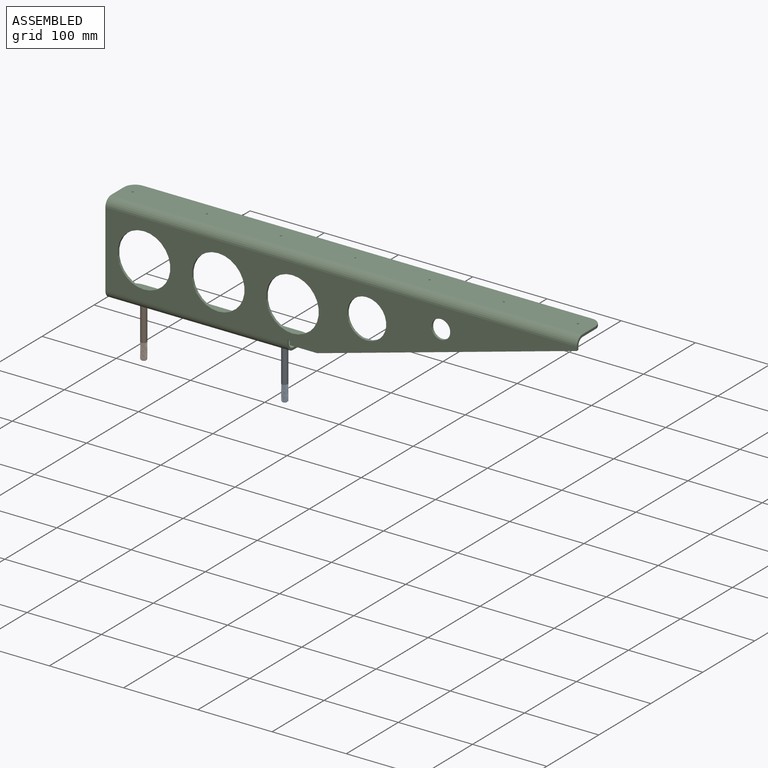
[diagram: assembled view]
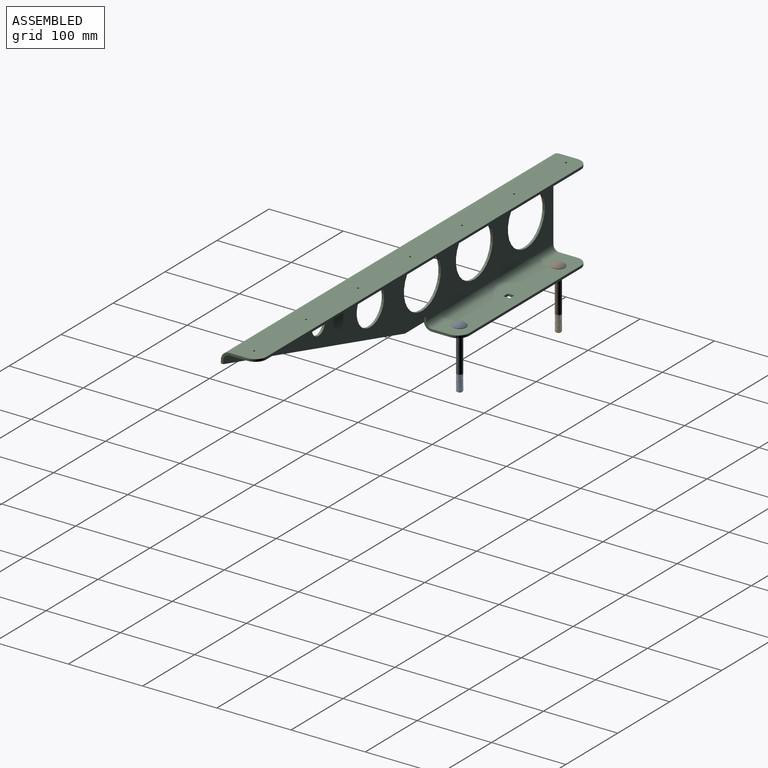
[diagram: assembled view, second angle]
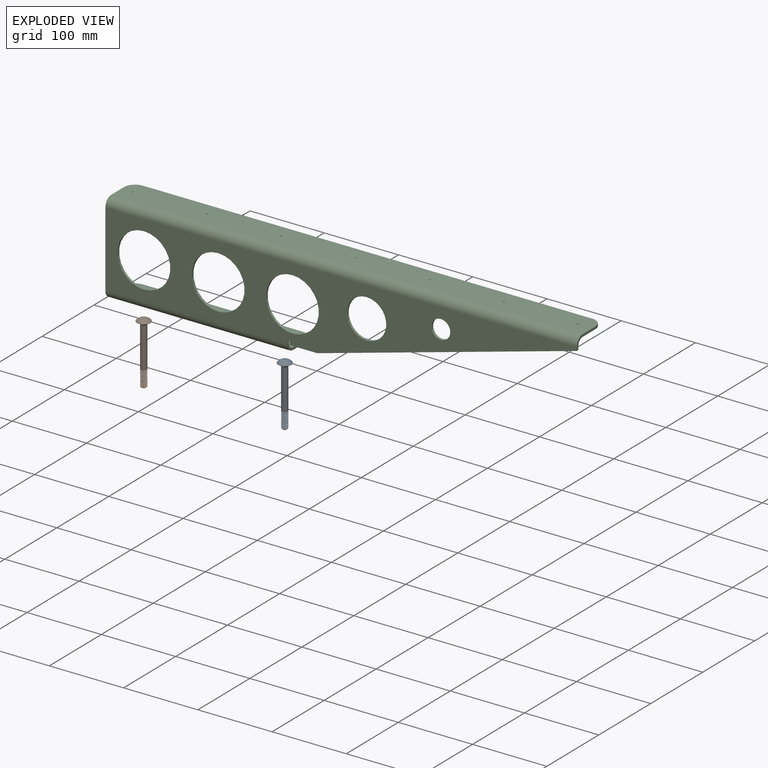
[diagram: exploded view]
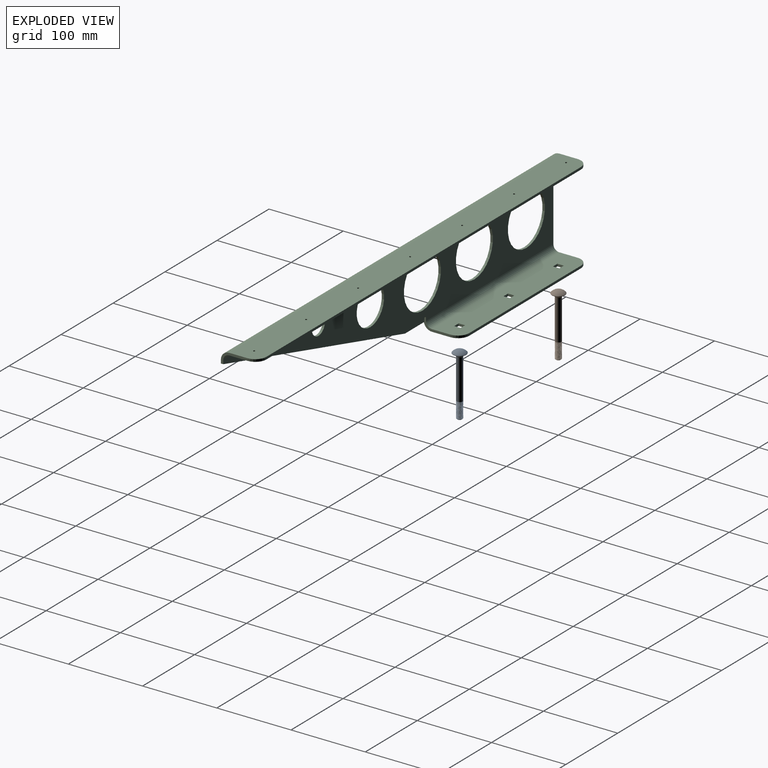
[diagram: exploded view, second angle]
ASSEMBLY  parts=3 mates=2
PART A: 37 faces, bbox 20.6x86.4x20.6 mm
  f0: cone r=4.3mm half-angle=45deg, axis (0,-1,0), area 8.6mm2, adj f3,f29,f30
  f1: cone r=4.3mm half-angle=45deg, axis (0,-1,0), area 8.6mm2, adj f3,f30,f31
  f2: cone r=4.3mm half-angle=45deg, axis (0,-1,0), area 8.6mm2, adj f3,f31,f32
  f3: torus R=5.03mm, axis (0,-1,0), area 20.9mm2, adj f0,f1,f2,f4,f11,f29,f30,f31
  f4: cone r=4.3mm half-angle=45deg, axis (0,-1,0), area 8.6mm2, adj f3,f29,f32
  f5: plane 6.13x6.13mm, normal (0,1,0), area 29.5mm2, adj f6
  f6: cone r=3.06mm half-angle=45deg, axis (0,-1,0), area 11.8mm2, adj f5,f7,f9,f10
  f7: cone r=3.06mm half-angle=45deg, axis (0,-1,0), area 3.8mm2, adj f6,f8,f10,f28
  f8: bspline ~22.55x9.24mm, area 373.6mm2, adj f7,f9,f11,f12,f13,f14,f15,f16
  f9: cylinder r=3.15mm len=21.91mm, axis (0,-1,0), area 87.6mm2, adj f6,f8,f10,f36
  f10: bspline ~22.97x9.24mm, area 373.7mm2, adj f6,f7,f9,f11,f12,f13,f14,f15
  f11: cylinder r=4mm len=55.33mm, axis (0,1,0), area 1367mm2, adj f3,f8,f10,f27,f36
  f12: cylinder r=4mm len=8mm, axis (0,1,0), area 3.9mm2, adj f8,f10,f13,f28
  f13: cylinder r=4mm len=8mm, axis (0,1,0), area 3.9mm2, adj f8,f10,f12,f14
  f14: cylinder r=4mm len=8mm, axis (0,1,0), area 3.9mm2, adj f8,f10,f13,f15
  f15: cylinder r=4mm len=8mm, axis (0,1,0), area 3.9mm2, adj f8,f10,f14,f16
  f16: cylinder r=4mm len=8mm, axis (0,1,0), area 3.9mm2, adj f8,f10,f15,f17
  f17: cylinder r=4mm len=8mm, axis (0,1,0), area 3.9mm2, adj f8,f10,f16,f18
  f18: cylinder r=4mm len=8mm, axis (0,1,0), area 3.9mm2, adj f8,f10,f17,f19
  f19: cylinder r=4mm len=8mm, axis (0,1,0), area 3.9mm2, adj f8,f10,f18,f20
  f20: cylinder r=4mm len=8mm, axis (0,1,0), area 3.9mm2, adj f8,f10,f19,f21
  f21: cylinder r=4mm len=8mm, axis (0,1,0), area 3.9mm2, adj f8,f10,f20,f22
  f22: cylinder r=4mm len=8mm, axis (0,1,0), area 3.9mm2, adj f8,f10,f21,f23
  f23: cylinder r=4mm len=8mm, axis (0,1,0), area 3.9mm2, adj f8,f10,f22,f24
  f24: cylinder r=4mm len=8mm, axis (0,1,0), area 3.9mm2, adj f8,f10,f23,f25
  f25: cylinder r=4mm len=8mm, axis (0,1,0), area 3.9mm2, adj f8,f10,f24,f26
  f26: cylinder r=4mm len=8mm, axis (0,1,0), area 3.9mm2, adj f8,f10,f25,f27
  f27: cylinder r=4mm len=8mm, axis (0,1,0), area 3.9mm2, adj f8,f10,f11,f26
  f28: cylinder r=4mm len=2.85mm, axis (0,1,0), area 0.2mm2, adj f7,f10,f12
  f29: plane 9.7x4.13mm, normal (1,0,0), area 20.4mm2, adj f0,f3,f4,f30,f32,f35
  f30: plane 9.7x4.13mm, normal (0,0,-1), area 20.4mm2, adj f0,f1,f3,f29,f31,f35
  f31: plane 9.7x4.13mm, normal (-1,0,0), area 20.4mm2, adj f1,f2,f3,f30,f32,f35
  f32: plane 9.7x4.13mm, normal (0,0,1), area 20.4mm2, adj f2,f3,f4,f29,f31,f35
  f33: sphere r=11.85mm, area 298mm2, adj f34
  f34: torus R=8.52mm, axis (0,1,0), area 61.4mm2, adj f33,f35
  f35: plane 17.04x17.04mm, normal (0,1,0), area 154.4mm2, adj f29,f30,f31,f32,f34
  f36: plane 8.5x8.45mm, normal (0,1,0), area 9.8mm2, adj f8,f9,f10,f11
PART B: same geometry as A
PART C: 55 faces, bbox 635x50.8x123.4 mm
  f0: plane 24.69x3.18mm, normal (-1,0,0), area 78.4mm2, adj f15,f16,f18,f52
  f1: plane 215x3.18mm, normal (0,1,0), area 682.6mm2, adj f15,f16,f17,f18
  f2: plane 8.58x3.18mm, normal (0,-1,0), area 27.2mm2, adj f3,f13,f15,f16
  f3: plane 8.58x3.18mm, normal (1,0,0), area 27.2mm2, adj f2,f4,f15,f16
  f4: plane 8.58x3.18mm, normal (0,1,0), area 27.2mm2, adj f3,f13,f15,f16
  f5: plane 8.58x3.18mm, normal (-1,0,0), area 27.2mm2, adj f6,f12,f15,f16
  f6: plane 8.58x3.18mm, normal (0,-1,0), area 27.2mm2, adj f5,f7,f15,f16
  f7: plane 8.58x3.18mm, normal (1,0,0), area 27.2mm2, adj f6,f12,f15,f16
  f8: plane 8.58x3.18mm, normal (-1,0,0), area 27.2mm2, adj f9,f11,f15,f16
  f9: plane 8.58x3.18mm, normal (0,-1,0), area 27.2mm2, adj f8,f10,f15,f16
  f10: plane 8.58x3.18mm, normal (1,0,0), area 27.2mm2, adj f9,f11,f15,f16
  f11: plane 8.58x3.18mm, normal (0,1,0), area 27.2mm2, adj f8,f10,f15,f16
  f12: plane 8.58x3.18mm, normal (0,1,0), area 27.2mm2, adj f5,f7,f15,f16
  f13: plane 8.58x3.18mm, normal (-1,0,0), area 27.2mm2, adj f2,f4,f15,f16
  f14: plane 24.69x3.18mm, normal (1,0,0), area 78.4mm2, adj f15,f16,f17,f51
  f15: plane 245x39.69mm, normal (0,0,-1), area 9406mm2, adj f0,f1,f2,f3,f4,f5,f6,f7
  f16: plane 245x39.69mm, normal (0,0,1), area 9406mm2, adj f0,f1,f2,f3,f4,f5,f6,f7
  f17: cylinder r=15mm len=15mm, axis (0,0,1), area 74.8mm2, adj f1,f14,f15,f16
  f18: cylinder r=15mm len=15mm, axis (0,0,-1), area 74.8mm2, adj f0,f1,f15,f16
  f19: plane 36.99x3.18mm, normal (0,0,-1), area 117.5mm2, adj f21,f28,f29,f30
  f20: plane 101.14x3.18mm, normal (-1,0,0), area 321.1mm2, adj f28,f29,f48,f52
  f21: plane 349.63x96.25mm, normal (0.27,0,-0.96), area 1151.4mm2, adj f19,f27,f28,f29
  f22: cylinder r=12.64mm len=25.28mm, axis (0,-1,0), area 252.2mm2, adj f28,f29
  f23: cylinder r=35.57mm len=71.14mm, axis (0,-1,0), area 709.5mm2, adj f28,f29
  f24: cylinder r=26.41mm len=52.81mm, axis (0,-1,0), area 526.8mm2, adj f28,f29
  f25: cylinder r=35.57mm len=71.14mm, axis (0,-1,0), area 709.5mm2, adj f28,f29
  f26: cylinder r=35.57mm len=71.14mm, axis (0,-1,0), area 709.5mm2, adj f28,f29
  f27: plane 4.89x3.18mm, normal (1,0,0), area 15.5mm2, adj f21,f28,f29,f47
  f28: plane 635x101.14mm, normal (0,-1,0), area 32761.8mm2, adj f19,f20,f21,f22,f23,f24,f25,f26
  f29: plane 635x101.14mm, normal (0,1,0), area 32761.8mm2, adj f19,f20,f21,f22,f23,f24,f25,f26
  f30: plane 3.97x3.18mm, normal (-1,0,0), area 12.6mm2, adj f19,f28,f29,f31
  f31: cylinder r=1.69mm len=3.37mm, axis (0,1,0), area 16.8mm2, adj f28,f29,f30,f32
  f32: plane 3.97x3.18mm, normal (1,0,0), area 12.6mm2, adj f28,f29,f31,f51
  f33: plane 24.69x3.18mm, normal (1,0,0), area 78.4mm2, adj f43,f44,f46,f47
  f34: plane 605x3.18mm, normal (0,1,0), area 1920.9mm2, adj f43,f44,f45,f46
  f35: cylinder r=1.25mm len=3.18mm, axis (0,0,1), area 24.9mm2, adj f43,f44
  f36: cylinder r=1.25mm len=3.18mm, axis (0,0,1), area 24.9mm2, adj f43,f44
  f37: cylinder r=1.25mm len=3.18mm, axis (0,0,1), area 24.9mm2, adj f43,f44
  f38: cylinder r=1.25mm len=3.18mm, axis (0,0,1), area 24.9mm2, adj f43,f44
  f39: cylinder r=1.25mm len=3.18mm, axis (0,0,1), area 24.9mm2, adj f43,f44
  f40: cylinder r=1.25mm len=3.18mm, axis (0,0,1), area 24.9mm2, adj f43,f44
  f41: cylinder r=1.25mm len=3.18mm, axis (0,0,1), area 24.9mm2, adj f43,f44
  f42: plane 24.69x3.18mm, normal (-1,0,0), area 78.4mm2, adj f43,f44,f45,f48
  f43: plane 635x39.69mm, normal (0,0,1), area 25070.6mm2, adj f33,f34,f35,f36,f37,f38,f39,f40
  f44: plane 635x39.69mm, normal (0,0,-1), area 25070.6mm2, adj f33,f34,f35,f36,f37,f38,f39,f40
  f45: cylinder r=15mm len=15mm, axis (0,0,1), area 74.8mm2, adj f34,f42,f43,f44
  f46: cylinder r=15mm len=15mm, axis (0,0,-1), area 74.8mm2, adj f33,f34,f43,f44
  f47: plane 11.11x11.11mm, normal (1,0,0), area 47.5mm2, adj f27,f33,f49,f50
  f48: plane 11.11x11.11mm, normal (-1,0,0), area 47.5mm2, adj f20,f42,f49,f50
  f49: cylinder r=11.11mm len=635mm, axis (1,0,0), area 11084.2mm2, adj f28,f43,f47,f48
  f50: cylinder r=7.94mm len=635mm, axis (1,0,0), area 7917.3mm2, adj f29,f44,f47,f48
  f51: plane 11.11x11.11mm, normal (1,0,0), area 47.5mm2, adj f14,f32,f53,f54
  f52: plane 11.11x11.11mm, normal (-1,0,0), area 47.5mm2, adj f0,f20,f53,f54
  f53: cylinder r=11.11mm len=245mm, axis (1,0,0), area 4276.6mm2, adj f15,f28,f51,f52
  f54: cylinder r=7.94mm len=245mm, axis (1,0,0), area 3054.7mm2, adj f16,f29,f51,f52
PLACE A rot(axis=(-1,0,0),90deg) t=(27.6,56.29,-85.94)mm
PLACE B rot(axis=(-1,0,0),90deg) t=(-162.4,56.29,-85.94)mm
PLACE C t=(-192.4,76.14,-93.91)mm
MATE fastened B.f6 <-> C.f16  axis (0,0,-1) through (-162.4,56.29,-90.74)mm
MATE fastened A.f6 <-> C.f16  axis (0,0,-1) through (27.6,56.29,-90.74)mm
